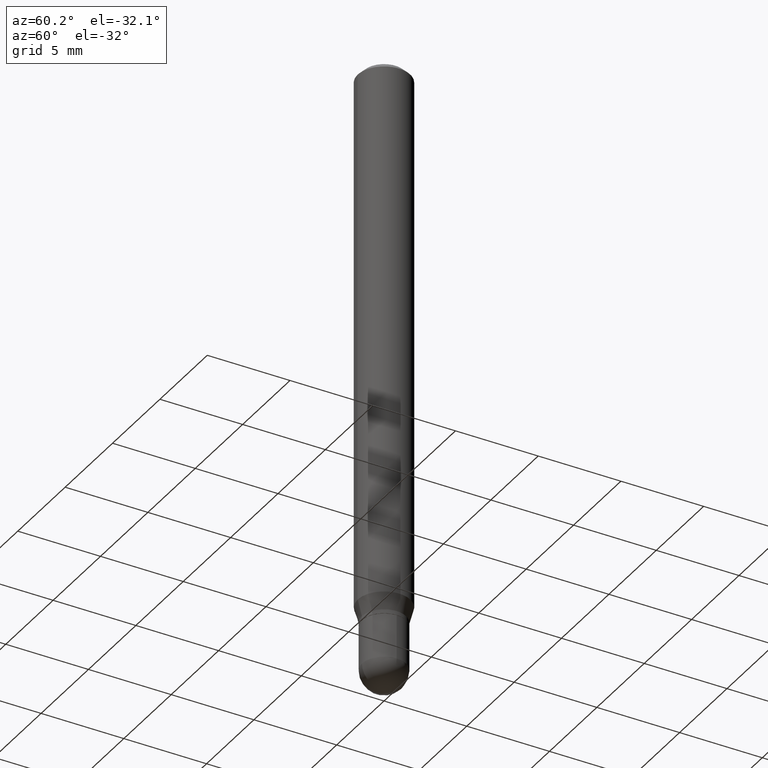
[diagram: clean part render]
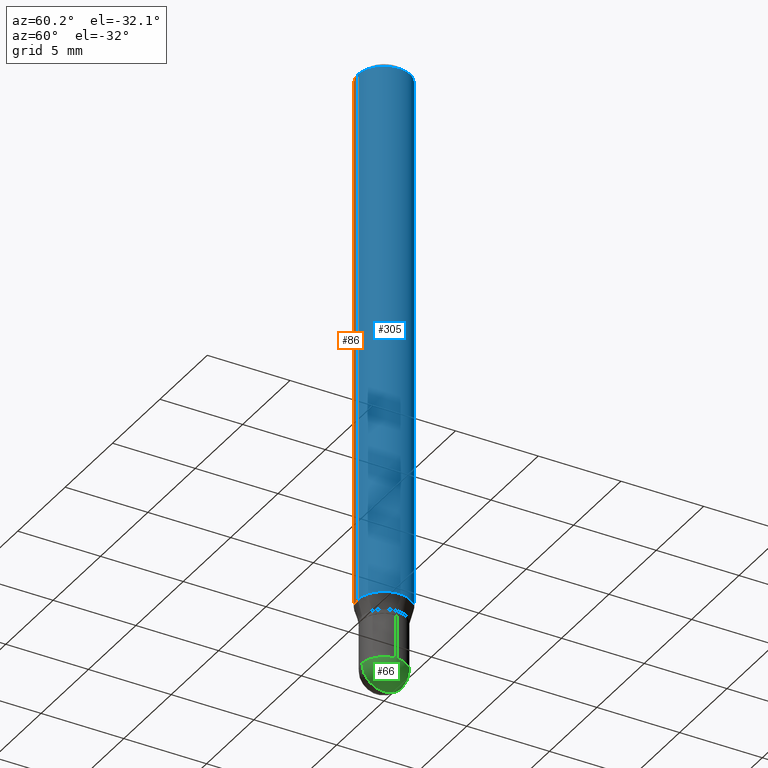
[diagram: same view with three faces highlighted in distinct colors, each labeled with its STEP entity id]
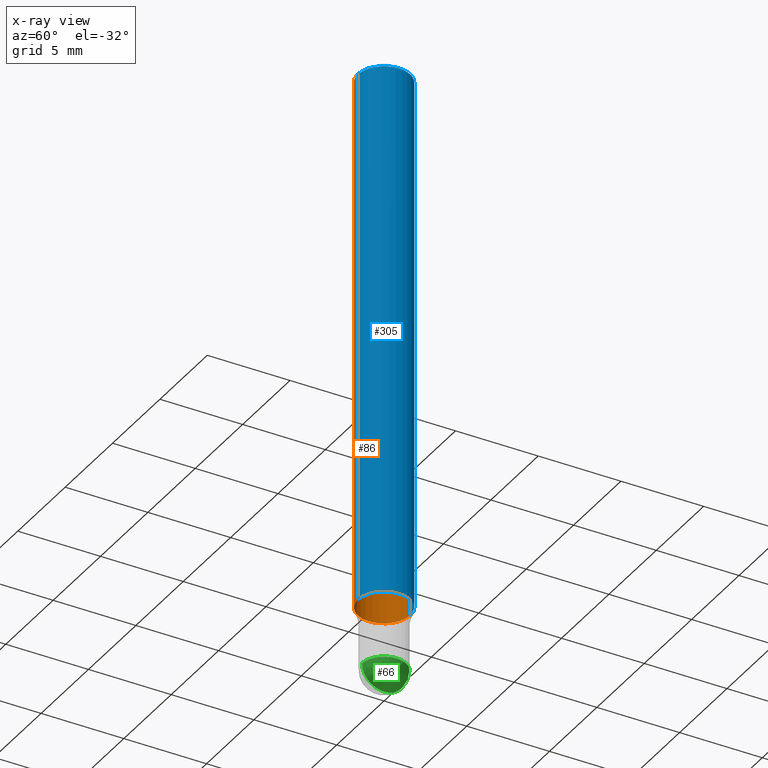
[diagram: x-ray of the same camera — body ghosted, the three highlighted faces saturated]
A machine part, auxiliary view with three faces highlighted in distinct colors.
The next image is the same camera in x-ray (body ghosted, the three faces saturated) — at least one of them is partly hidden behind the body in this view.
Their STEP definitions:

[orange] entity #86 — the highlighted cylindrical surface (edge-blend (fillet) strip) has radius 1.5875 mm, axis along (-0, 0, 1).
#5 = ORIENTED_EDGE ( 'NONE', *, *, #448, .F. ) ;
#22 = DIRECTION ( 'NONE',  ( -2.445568885019191526E-29, 3.491338020256645256E-15, 1.000000000000000000 ) ) ;
#27 = CIRCLE ( 'NONE', #390, 0.06250000000000000000 ) ;
#34 = VERTEX_POINT ( 'NONE', #459 ) ;
#35 = EDGE_CURVE ( 'NONE', #478, #251, #97, .T. ) ;
#45 = CARTESIAN_POINT ( 'NONE',  ( 4.440892098500625669E-16, 0.06250000000000000000, -2.182086262660403285E-16 ) ) ;
#69 = AXIS2_PLACEMENT_3D ( 'NONE', #413, #102, #138 ) ;
#70 = CIRCLE ( 'NONE', #402, 0.06250000000000000000 ) ;
#86 = ADVANCED_FACE ( 'NONE', ( #145 ), #298, .T. ) ;
#87 = DIRECTION ( 'NONE',  ( -2.445568885019191806E-29, 3.491338020256645256E-15, 1.000000000000000000 ) ) ;
#89 = VERTEX_POINT ( 'NONE', #222 ) ;
#97 = LINE ( 'NONE', #190, #233 ) ;
#102 = DIRECTION ( 'NONE',  ( -2.445568885019191806E-29, 3.491338020256645256E-15, 1.000000000000000000 ) ) ;
#111 = ORIENTED_EDGE ( 'NONE', *, *, #257, .F. ) ;
#114 = CARTESIAN_POINT ( 'NONE',  ( 3.668353327528789828E-31, -5.237007030384970941E-17, -0.01500000000000000812 ) ) ;
#138 = DIRECTION ( 'NONE',  ( -6.982962677686265922E-15, -1.000000000000000000, 3.491338020256645256E-15 ) ) ;
#145 = FACE_OUTER_BOUND ( 'NONE', #469, .T. ) ;
#158 = ORIENTED_EDGE ( 'NONE', *, *, #364, .T. ) ;
#159 = DIRECTION ( 'NONE',  ( -6.982962677686265922E-15, -1.000000000000000000, 3.483106191921935554E-15 ) ) ;
#166 = CARTESIAN_POINT ( 'NONE',  ( 3.166227881522550846E-29, -4.520163734201902903E-15, -1.294679491924310977 ) ) ;
#186 = DIRECTION ( 'NONE',  ( -2.445568885019191526E-29, 3.491338020256645256E-15, 1.000000000000000000 ) ) ;
#190 = CARTESIAN_POINT ( 'NONE',  ( -4.364351673553916201E-16, -0.06250000000000000000, 2.182086262660403285E-16 ) ) ;
#222 = CARTESIAN_POINT ( 'NONE',  ( 4.440892098500943678E-16, 0.06249999999999550360, -1.294679491924311199 ) ) ;
#233 = VECTOR ( 'NONE', #186, 39.37007874015748143 ) ;
#251 = VERTEX_POINT ( 'NONE', #281 ) ;
#257 = EDGE_CURVE ( 'NONE', #89, #34, #398, .T. ) ;
#281 = CARTESIAN_POINT ( 'NONE',  ( -4.364351673553912750E-16, -0.06250000000000005551, -0.01499999999999979128 ) ) ;
#298 = CYLINDRICAL_SURFACE ( 'NONE', #69, 0.06250000000000000000 ) ;
#314 = ORIENTED_EDGE ( 'NONE', *, *, #35, .T. ) ;
#345 = CARTESIAN_POINT ( 'NONE',  ( -4.364351673553597698E-16, -0.06250000000000449640, -1.294679491924310755 ) ) ;
#364 = EDGE_CURVE ( 'NONE', #89, #478, #70, .T. ) ;
#390 = AXIS2_PLACEMENT_3D ( 'NONE', #114, #87, #159 ) ;
#398 = LINE ( 'NONE', #45, #405 ) ;
#402 = AXIS2_PLACEMENT_3D ( 'NONE', #166, #403, #485 ) ;
#403 = DIRECTION ( 'NONE',  ( -2.445568885019191806E-29, 3.491338020256645256E-15, 1.000000000000000000 ) ) ;
#405 = VECTOR ( 'NONE', #22, 39.37007874015748143 ) ;
#413 = CARTESIAN_POINT ( 'NONE',  ( 0.000000000000000000, 0.000000000000000000, 0.000000000000000000 ) ) ;
#448 = EDGE_CURVE ( 'NONE', #34, #251, #27, .T. ) ;
#459 = CARTESIAN_POINT ( 'NONE',  ( 4.440892098500944664E-16, 0.06249999999999995143, -0.01500000000000022669 ) ) ;
#469 = EDGE_LOOP ( 'NONE', ( #111, #158, #314, #5 ) ) ;
#478 = VERTEX_POINT ( 'NONE', #345 ) ;
#485 = DIRECTION ( 'NONE',  ( -6.982962677686265922E-15, -1.000000000000000000, 4.370956789862821150E-15 ) ) ;

[blue] entity #305 — the highlighted cylindrical surface (edge-blend (fillet) strip) has radius 1.5875 mm, axis along (-0, 0, 1).
#11 = DIRECTION ( 'NONE',  ( -2.445568885019191806E-29, 3.491338020256645256E-15, 1.000000000000000000 ) ) ;
#22 = DIRECTION ( 'NONE',  ( -2.445568885019191526E-29, 3.491338020256645256E-15, 1.000000000000000000 ) ) ;
#34 = VERTEX_POINT ( 'NONE', #459 ) ;
#35 = EDGE_CURVE ( 'NONE', #478, #251, #97, .T. ) ;
#45 = CARTESIAN_POINT ( 'NONE',  ( 4.440892098500625669E-16, 0.06250000000000000000, -2.182086262660403285E-16 ) ) ;
#52 = DIRECTION ( 'NONE',  ( -6.982962677686265922E-15, -1.000000000000000000, 3.483106191921935554E-15 ) ) ;
#77 = CARTESIAN_POINT ( 'NONE',  ( 3.166227881522550846E-29, -4.520163734201902903E-15, -1.294679491924310977 ) ) ;
#79 = AXIS2_PLACEMENT_3D ( 'NONE', #77, #11, #81 ) ;
#81 = DIRECTION ( 'NONE',  ( -6.982962677686265922E-15, -1.000000000000000000, 4.370956789862821150E-15 ) ) ;
#89 = VERTEX_POINT ( 'NONE', #222 ) ;
#97 = LINE ( 'NONE', #190, #233 ) ;
#133 = ORIENTED_EDGE ( 'NONE', *, *, #134, .F. ) ;
#134 = EDGE_CURVE ( 'NONE', #251, #34, #146, .T. ) ;
#146 = CIRCLE ( 'NONE', #471, 0.06250000000000000000 ) ;
#185 = CARTESIAN_POINT ( 'NONE',  ( 0.000000000000000000, 0.000000000000000000, 0.000000000000000000 ) ) ;
#186 = DIRECTION ( 'NONE',  ( -2.445568885019191526E-29, 3.491338020256645256E-15, 1.000000000000000000 ) ) ;
#190 = CARTESIAN_POINT ( 'NONE',  ( -4.364351673553916201E-16, -0.06250000000000000000, 2.182086262660403285E-16 ) ) ;
#197 = ORIENTED_EDGE ( 'NONE', *, *, #340, .T. ) ;
#205 = DIRECTION ( 'NONE',  ( -2.445568885019191806E-29, 3.491338020256645256E-15, 1.000000000000000000 ) ) ;
#222 = CARTESIAN_POINT ( 'NONE',  ( 4.440892098500943678E-16, 0.06249999999999550360, -1.294679491924311199 ) ) ;
#227 = CYLINDRICAL_SURFACE ( 'NONE', #431, 0.06250000000000000000 ) ;
#233 = VECTOR ( 'NONE', #186, 39.37007874015748143 ) ;
#251 = VERTEX_POINT ( 'NONE', #281 ) ;
#257 = EDGE_CURVE ( 'NONE', #89, #34, #398, .T. ) ;
#262 = FACE_OUTER_BOUND ( 'NONE', #433, .T. ) ;
#281 = CARTESIAN_POINT ( 'NONE',  ( -4.364351673553912750E-16, -0.06250000000000005551, -0.01499999999999979128 ) ) ;
#289 = CARTESIAN_POINT ( 'NONE',  ( 3.668353327528789828E-31, -5.237007030384970941E-17, -0.01500000000000000812 ) ) ;
#290 = ORIENTED_EDGE ( 'NONE', *, *, #35, .F. ) ;
#305 = ADVANCED_FACE ( 'NONE', ( #262 ), #227, .T. ) ;
#340 = EDGE_CURVE ( 'NONE', #478, #89, #472, .T. ) ;
#345 = CARTESIAN_POINT ( 'NONE',  ( -4.364351673553597698E-16, -0.06250000000000449640, -1.294679491924310755 ) ) ;
#347 = ORIENTED_EDGE ( 'NONE', *, *, #257, .T. ) ;
#350 = DIRECTION ( 'NONE',  ( -6.982962677686265922E-15, -1.000000000000000000, 3.491338020256645256E-15 ) ) ;
#398 = LINE ( 'NONE', #45, #405 ) ;
#405 = VECTOR ( 'NONE', #22, 39.37007874015748143 ) ;
#431 = AXIS2_PLACEMENT_3D ( 'NONE', #185, #205, #350 ) ;
#433 = EDGE_LOOP ( 'NONE', ( #197, #347, #133, #290 ) ) ;
#459 = CARTESIAN_POINT ( 'NONE',  ( 4.440892098500944664E-16, 0.06249999999999995143, -0.01500000000000022669 ) ) ;
#471 = AXIS2_PLACEMENT_3D ( 'NONE', #289, #490, #52 ) ;
#472 = CIRCLE ( 'NONE', #79, 0.06250000000000000000 ) ;
#478 = VERTEX_POINT ( 'NONE', #345 ) ;
#490 = DIRECTION ( 'NONE',  ( -2.445568885019191806E-29, 3.491338020256645256E-15, 1.000000000000000000 ) ) ;

[green] entity #66 — the highlighted spherical surface has radius 1.3335 mm.
#14 = VERTEX_POINT ( 'NONE', #481 ) ;
#37 = VERTEX_POINT ( 'NONE', #464 ) ;
#41 = CARTESIAN_POINT ( 'NONE',  ( 3.665958397768609631E-29, -5.240436706112481047E-15, -1.500000000000000222 ) ) ;
#53 = EDGE_LOOP ( 'NONE', ( #318, #369, #388, #470 ) ) ;
#54 = AXIS2_PLACEMENT_3D ( 'NONE', #228, #288, #267 ) ;
#66 = ADVANCED_FACE ( 'NONE', ( #342 ), #414, .T. ) ;
#84 = CARTESIAN_POINT ( 'NONE',  ( 3.539816096952984843E-29, -5.053919237975452413E-15, -1.447499999999999787 ) ) ;
#109 = AXIS2_PLACEMENT_3D ( 'NONE', #307, #189, #423 ) ;
#121 = DIRECTION ( 'NONE',  ( 6.982962677686265922E-15, 1.000000000000000000, 0.000000000000000000 ) ) ;
#147 = AXIS2_PLACEMENT_3D ( 'NONE', #243, #321, #121 ) ;
#189 = DIRECTION ( 'NONE',  ( -2.445468806185136597E-29, 3.491481338843145583E-15, 1.000000000000000000 ) ) ;
#196 = CARTESIAN_POINT ( 'NONE',  ( -3.730349362740171836E-16, -0.05250000000000507733, -1.447499999999999565 ) ) ;
#198 = CARTESIAN_POINT ( 'NONE',  ( 3.535326473934793753E-29, -5.060348633670977366E-15, -1.447500000000000009 ) ) ;
#210 = CIRCLE ( 'NONE', #224, 0.05250000000000002581 ) ;
#211 = DIRECTION ( 'NONE',  ( -1.000000000000000000, 7.105427357601001070E-15, -4.926315508542082329E-29 ) ) ;
#224 = AXIS2_PLACEMENT_3D ( 'NONE', #198, #211, #246 ) ;
#228 = CARTESIAN_POINT ( 'NONE',  ( 3.535326473934793753E-29, -5.060348633670977366E-15, -1.447500000000000009 ) ) ;
#238 = VERTEX_POINT ( 'NONE', #196 ) ;
#243 = CARTESIAN_POINT ( 'NONE',  ( 3.535326473934793753E-29, -5.060348633670977366E-15, -1.447500000000000009 ) ) ;
#246 = DIRECTION ( 'NONE',  ( -7.105427357601001070E-15, -1.000000000000000000, 0.000000000000000000 ) ) ;
#249 = CIRCLE ( 'NONE', #147, 0.05250000000000002581 ) ;
#267 = DIRECTION ( 'NONE',  ( 6.982962677686265133E-15, 1.000000000000000000, -5.203519987931926784E-15 ) ) ;
#280 = DIRECTION ( 'NONE',  ( 1.000000000000000000, -6.982962677686268288E-15, 0.000000000000000000 ) ) ;
#288 = DIRECTION ( 'NONE',  ( -1.000000000000000000, 6.982962677686265133E-15, -4.883557194083112340E-29 ) ) ;
#307 = CARTESIAN_POINT ( 'NONE',  ( 3.539816096952984843E-29, -5.053919237975452413E-15, -1.447499999999999787 ) ) ;
#313 = VERTEX_POINT ( 'NONE', #41 ) ;
#318 = ORIENTED_EDGE ( 'NONE', *, *, #400, .F. ) ;
#319 = EDGE_CURVE ( 'NONE', #238, #14, #480, .T. ) ;
#321 = DIRECTION ( 'NONE',  ( 1.000000000000000000, -6.982962677686265922E-15, 4.883557194083112340E-29 ) ) ;
#342 = FACE_OUTER_BOUND ( 'NONE', #53, .T. ) ;
#362 = DIRECTION ( 'NONE',  ( -2.445468806185136597E-29, 3.491481338843145583E-15, 1.000000000000000000 ) ) ;
#369 = ORIENTED_EDGE ( 'NONE', *, *, #415, .T. ) ;
#388 = ORIENTED_EDGE ( 'NONE', *, *, #475, .F. ) ;
#391 = CIRCLE ( 'NONE', #109, 0.05249999999999999806 ) ;
#400 = EDGE_CURVE ( 'NONE', #313, #238, #210, .T. ) ;
#414 = SPHERICAL_SURFACE ( 'NONE', #54, 0.05250000000000002581 ) ;
#415 = EDGE_CURVE ( 'NONE', #313, #37, #249, .T. ) ;
#423 = DIRECTION ( 'NONE',  ( 1.000000000000000000, -6.982962677686268288E-15, 0.000000000000000000 ) ) ;
#464 = CARTESIAN_POINT ( 'NONE',  ( 3.666055405785644616E-16, 0.05249999999999494654, -1.447500000000000009 ) ) ;
#470 = ORIENTED_EDGE ( 'NONE', *, *, #319, .F. ) ;
#475 = EDGE_CURVE ( 'NONE', #14, #37, #391, .T. ) ;
#480 = CIRCLE ( 'NONE', #503, 0.05249999999999999806 ) ;
#481 = CARTESIAN_POINT ( 'NONE',  ( 0.05249999999999999806, -5.236349137930005453E-15, -1.447499999999999787 ) ) ;
#503 = AXIS2_PLACEMENT_3D ( 'NONE', #84, #362, #280 ) ;